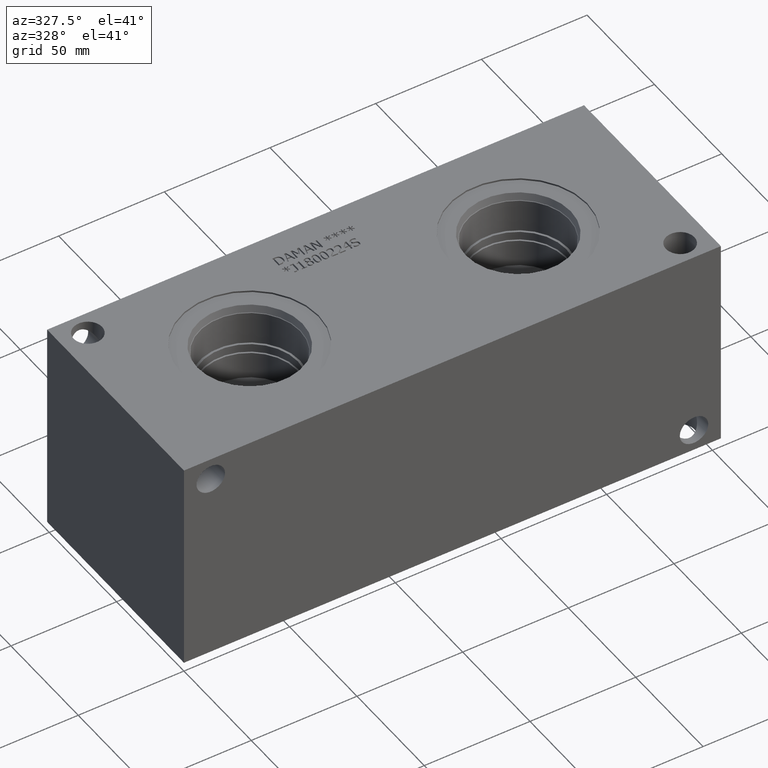
[diagram: clean part render]
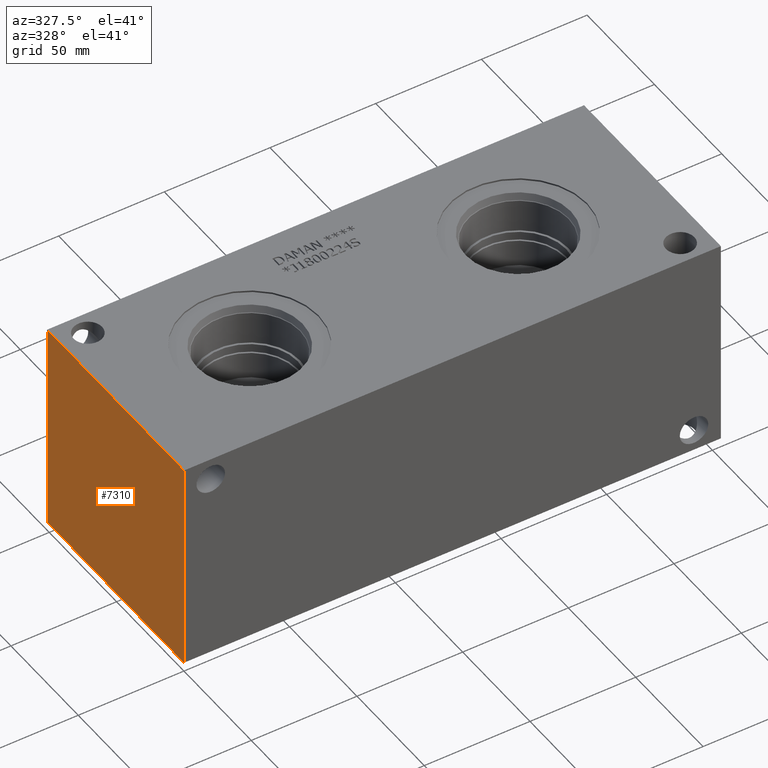
[diagram: same view with one face highlighted and labeled with its STEP entity id]
A machine part, auxiliary view. The second image highlights one B-rep face of the part: STEP entity #7310.
In plain terms, the highlighted planar face has unit normal (-1, 0, 0).
Its self-contained STEP definition (entity closure, byte-faithful):
#850=FACE_OUTER_BOUND('',#1259,.T.);
#1259=EDGE_LOOP('',(#6375,#6376,#6377,#6378));
#1564=LINE('',#11240,#2285);
#1986=LINE('',#12438,#2707);
#1987=LINE('',#12439,#2708);
#1988=LINE('',#12440,#2709);
#2285=VECTOR('',#8150,10.);
#2707=VECTOR('',#9148,10.);
#2708=VECTOR('',#9149,10.);
#2709=VECTOR('',#9150,10.);
#3023=VERTEX_POINT('',#11233);
#3026=VERTEX_POINT('',#11238);
#3385=VERTEX_POINT('',#12436);
#3386=VERTEX_POINT('',#12437);
#3854=EDGE_CURVE('',#3026,#3023,#1564,.T.);
#4388=EDGE_CURVE('',#3385,#3386,#1986,.T.);
#4389=EDGE_CURVE('',#3386,#3023,#1987,.T.);
#4390=EDGE_CURVE('',#3385,#3026,#1988,.T.);
#6375=ORIENTED_EDGE('',*,*,#4388,.T.);
#6376=ORIENTED_EDGE('',*,*,#4389,.T.);
#6377=ORIENTED_EDGE('',*,*,#3854,.F.);
#6378=ORIENTED_EDGE('',*,*,#4390,.F.);
#6635=PLANE('',#7695);
#7310=ADVANCED_FACE('',(#850),#6635,.T.);
#7695=AXIS2_PLACEMENT_3D('',#12435,#9146,#9147);
#8150=DIRECTION('',(0.,-1.,0.));
#9146=DIRECTION('center_axis',(-1.,0.,0.));
#9147=DIRECTION('ref_axis',(0.,-1.,0.));
#9148=DIRECTION('',(0.,-1.,0.));
#9149=DIRECTION('',(0.,0.,1.));
#9150=DIRECTION('',(0.,0.,1.));
#11233=CARTESIAN_POINT('',(0.,0.,101.6));
#11238=CARTESIAN_POINT('',(0.,101.6,101.6));
#11240=CARTESIAN_POINT('',(0.,101.6,101.6));
#12435=CARTESIAN_POINT('Origin',(0.,101.6,0.));
#12436=CARTESIAN_POINT('',(0.,101.6,0.));
#12437=CARTESIAN_POINT('',(0.,0.,0.));
#12438=CARTESIAN_POINT('',(0.,101.6,0.));
#12439=CARTESIAN_POINT('',(0.,0.,0.));
#12440=CARTESIAN_POINT('',(0.,101.6,0.));